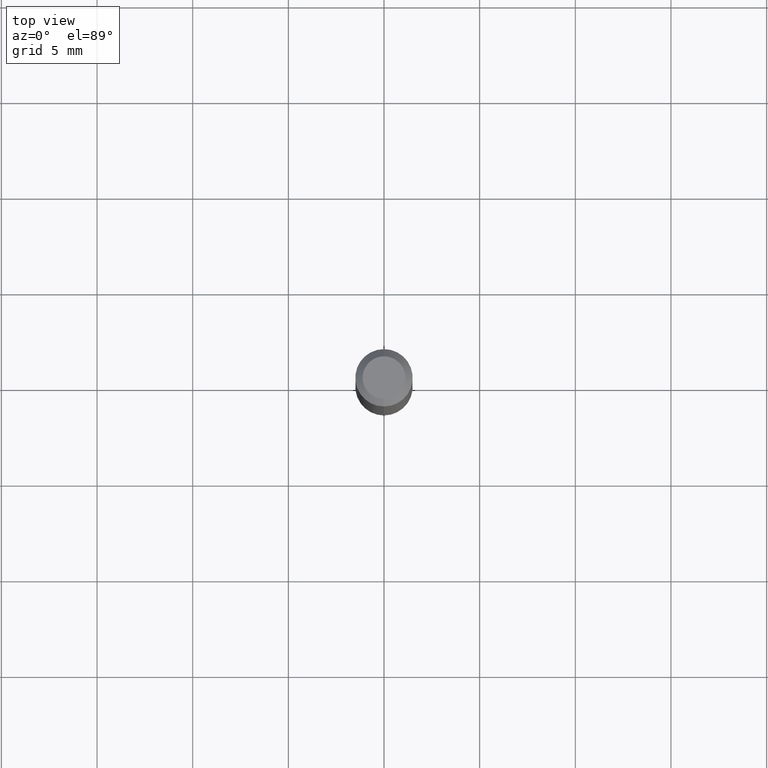
[diagram: clean part render]
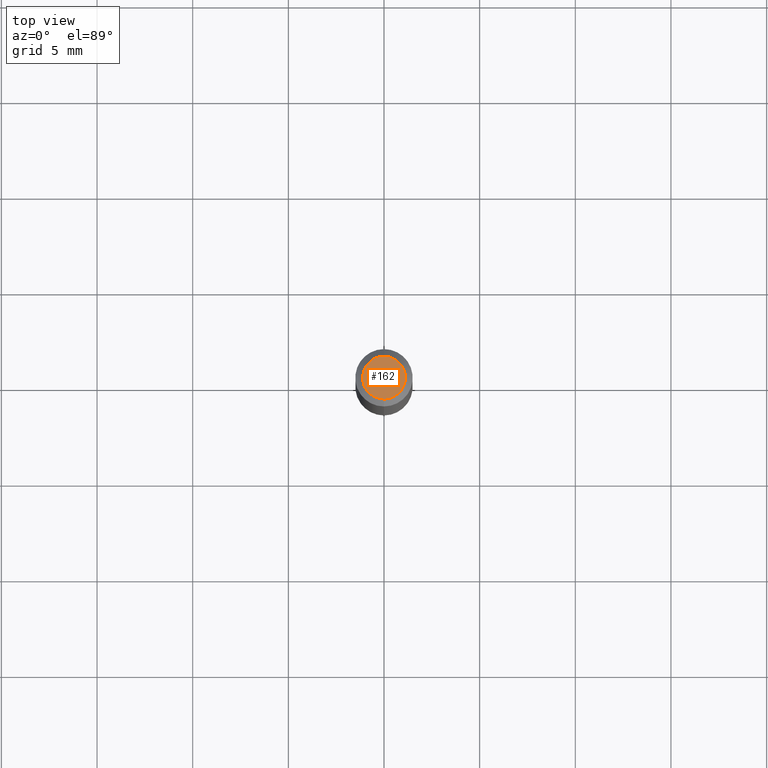
[diagram: same view with one face highlighted and labeled with its STEP entity id]
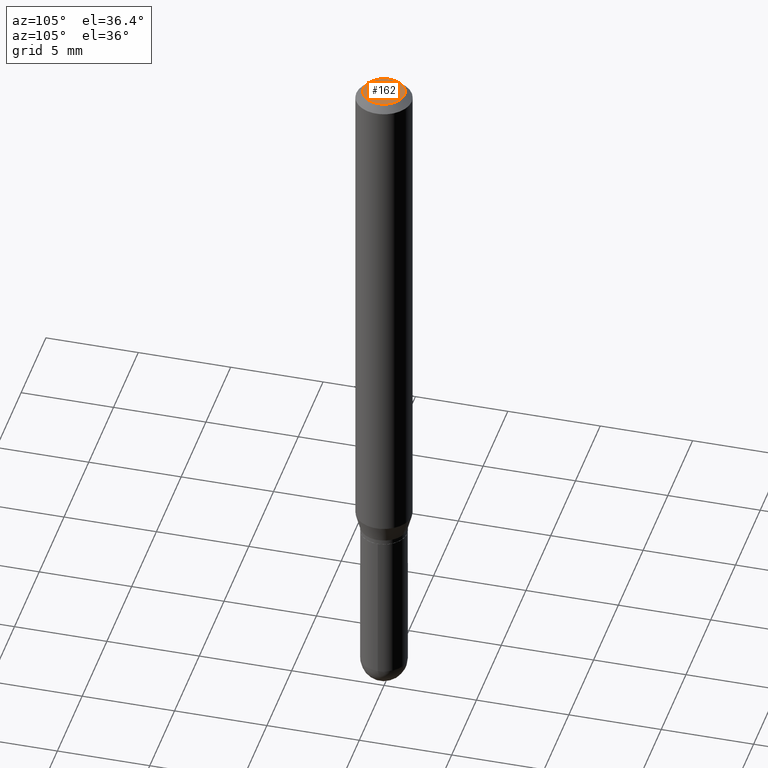
[diagram: same view with one face highlighted and labeled with its STEP entity id]
A machine part, top view. The second image highlights one B-rep face of the part: STEP entity #162.
A second angle (auxiliary view) of the same face is appended — the face is thin or edge-on in the first view.
In plain terms, the highlighted planar face has unit normal (0, -0, -1).
Its self-contained STEP definition (entity closure, byte-faithful):
#11 = EDGE_LOOP ( 'NONE', ( #271, #44 ) ) ;
#44 = ORIENTED_EDGE ( 'NONE', *, *, #323, .T. ) ;
#53 = AXIS2_PLACEMENT_3D ( 'NONE', #241, #447, #168 ) ;
#57 = CARTESIAN_POINT ( 'NONE',  ( -3.536586717851222711E-16, -0.04405000000000000582, 3.540390976085822120E-16 ) ) ;
#61 = AXIS2_PLACEMENT_3D ( 'NONE', #304, #65, #72 ) ;
#65 = DIRECTION ( 'NONE',  ( -2.444908645222623477E-29, 3.492283521223846478E-15, 1.000000000000000000 ) ) ;
#72 = DIRECTION ( 'NONE',  ( -6.982962677686265133E-15, -1.000000000000000000, 3.492283521223846084E-15 ) ) ;
#79 = EDGE_CURVE ( 'NONE', #361, #237, #281, .T. ) ;
#130 = FACE_OUTER_BOUND ( 'NONE', #11, .T. ) ;
#143 = CARTESIAN_POINT ( 'NONE',  ( -4.894805111866261893E-45, 6.991691597628703667E-31, 2.002040084986717477E-16 ) ) ;
#162 = ADVANCED_FACE ( 'NONE', ( #130 ), #243, .F. ) ;
#166 = AXIS2_PLACEMENT_3D ( 'NONE', #143, #261, #392 ) ;
#168 = DIRECTION ( 'NONE',  ( 6.982962677686265922E-15, 1.000000000000000000, -3.492283521223846084E-15 ) ) ;
#198 = CIRCLE ( 'NONE', #61, 0.04405000000000000582 ) ;
#237 = VERTEX_POINT ( 'NONE', #57 ) ;
#241 = CARTESIAN_POINT ( 'NONE',  ( 3.075995059520800222E-16, 0.04405000000000000582, -5.373308486057459653E-17 ) ) ;
#243 = PLANE ( 'NONE',  #53 ) ;
#261 = DIRECTION ( 'NONE',  ( -2.444908645222623477E-29, 3.492283521223846478E-15, 1.000000000000000000 ) ) ;
#271 = ORIENTED_EDGE ( 'NONE', *, *, #79, .T. ) ;
#281 = CIRCLE ( 'NONE', #166, 0.04405000000000000582 ) ;
#291 = CARTESIAN_POINT ( 'NONE',  ( 3.599717260347272986E-16, 0.04405000000000000582, 4.636891938876127733E-17 ) ) ;
#304 = CARTESIAN_POINT ( 'NONE',  ( -4.894805111866261893E-45, 6.991691597628703667E-31, 2.002040084986717477E-16 ) ) ;
#323 = EDGE_CURVE ( 'NONE', #237, #361, #198, .T. ) ;
#361 = VERTEX_POINT ( 'NONE', #291 ) ;
#392 = DIRECTION ( 'NONE',  ( -6.982962677686265133E-15, -1.000000000000000000, 3.492283521223846084E-15 ) ) ;
#447 = DIRECTION ( 'NONE',  ( 2.444908645222623477E-29, -3.492283521223846084E-15, -1.000000000000000000 ) ) ;